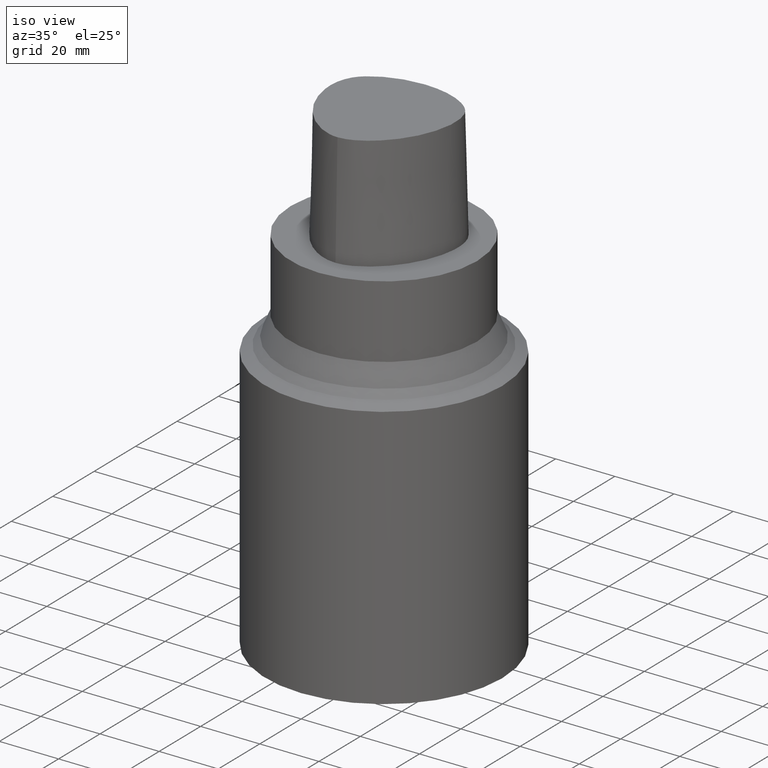
[diagram: clean part render]
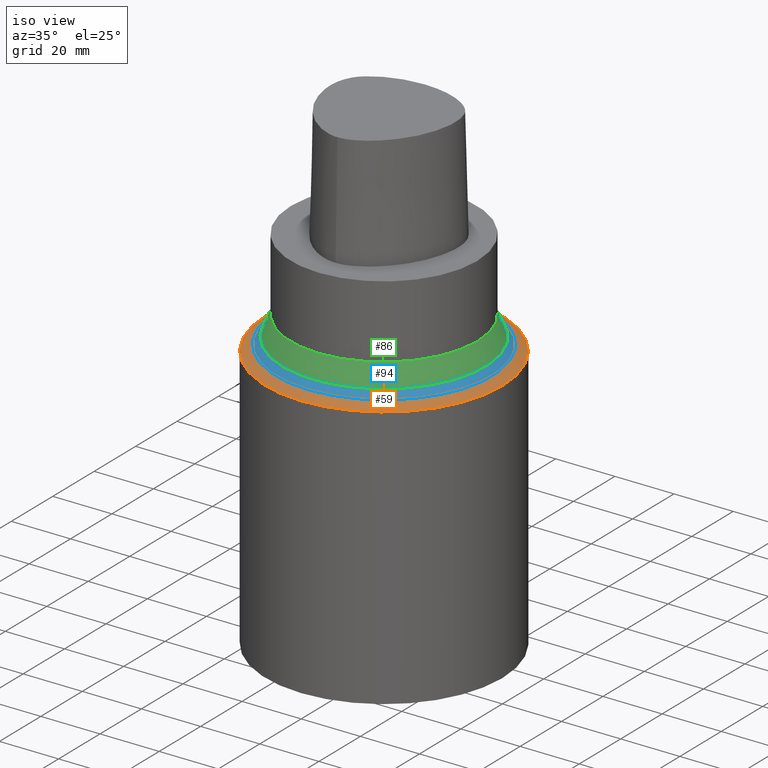
[diagram: same view with three faces highlighted in distinct colors, each labeled with its STEP entity id]
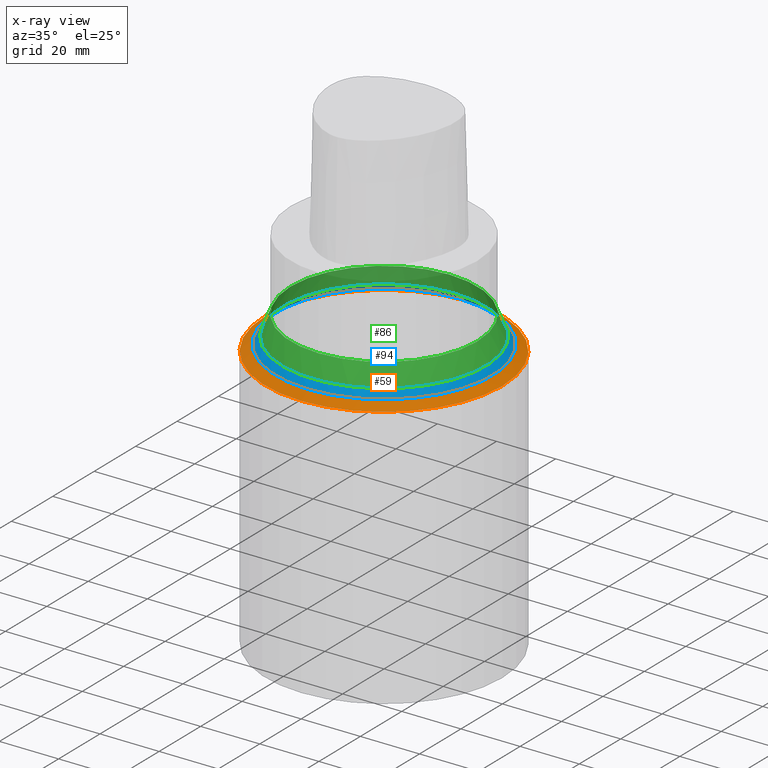
[diagram: x-ray of the same camera — body ghosted, the three highlighted faces saturated]
A machine part, iso view with three faces highlighted in distinct colors.
The next image is the same camera in x-ray (body ghosted, the three faces saturated) — at least one of them is partly hidden behind the body in this view.
Their STEP definitions:

[orange] entity #59 — the highlighted conical surface has half-angle 60 deg.
#59=ADVANCED_FACE('Unnamed[1]',(#147,#148),#149,.T.);
#74=EDGE_CURVE('Unnamed[1]',#170,#170,#171,.T.);
#108=EDGE_CURVE('Unnamed[1]',#219,#219,#220,.T.);
#147=FACE_BOUND('',#327,.T.);
#148=FACE_BOUND('',#328,.T.);
#149=CONICAL_SURFACE('',#329,38.2327008494253,1.04719755119658);
#170=VERTEX_POINT('',#389);
#171=CIRCLE('',#390,36.4654016988506);
#219=VERTEX_POINT('',#484);
#220=CIRCLE('',#485,40.0);
#327=EDGE_LOOP('',(#586));
#328=EDGE_LOOP('',(#587));
#329=AXIS2_PLACEMENT_3D('',#588,#589,#590);
#389=CARTESIAN_POINT('',(2.07247284381275E-015,36.4654016988506,-33.8460500653035));
#390=AXIS2_PLACEMENT_3D('',#603,#604,#605);
#484=CARTESIAN_POINT('',(2.19742975838069E-015,40.0,-35.8867513459494));
#485=AXIS2_PLACEMENT_3D('',#654,#655,#656);
#586=ORIENTED_EDGE('',*,*,#108,.F.);
#587=ORIENTED_EDGE('',*,*,#74,.T.);
#588=CARTESIAN_POINT('',(2.13495130109672E-015,4.26990260219345E-015,-34.8664007056265));
#589=DIRECTION('',(6.12323399573677E-017,1.22464679914735E-016,-1.0));
#590=DIRECTION('',(-1.23259516440783E-032,1.0,1.22464679914735E-016));
#603=CARTESIAN_POINT('',(2.07247284381275E-015,4.1449456876255E-015,-33.8460500653035));
#604=DIRECTION('',(6.12323399573677E-017,1.22464679914735E-016,-1.0));
#605=DIRECTION('',(-1.23259516440783E-032,1.0,1.22464679914735E-016));
#654=CARTESIAN_POINT('',(2.19742975838069E-015,4.39485951676139E-015,-35.8867513459494));
#655=DIRECTION('',(6.12323399573677E-017,1.22464679914735E-016,-1.0));
#656=DIRECTION('',(-1.23259516440783E-032,1.0,1.22464679914735E-016));

[blue] entity #94 — the highlighted conical surface has half-angle 41.303 deg.
#74=EDGE_CURVE('Unnamed[1]',#170,#170,#171,.T.);
#94=ADVANCED_FACE('Unnamed[1]',(#197,#198),#199,.T.);
#99=EDGE_CURVE('Unnamed[1]',#206,#206,#207,.T.);
#170=VERTEX_POINT('',#389);
#171=CIRCLE('',#390,36.4654016988506);
#197=FACE_BOUND('',#456,.T.);
#198=FACE_BOUND('',#457,.T.);
#199=CONICAL_SURFACE('',#458,35.4074818503013,0.720875980582513);
#206=VERTEX_POINT('',#467);
#207=CIRCLE('',#468,34.349562001752);
#389=CARTESIAN_POINT('',(2.07247284381275E-015,36.4654016988506,-33.8460500653035));
#390=AXIS2_PLACEMENT_3D('',#603,#604,#605);
#456=EDGE_LOOP('',(#628));
#457=EDGE_LOOP('',(#629));
#458=AXIS2_PLACEMENT_3D('',#630,#631,#632);
#467=CARTESIAN_POINT('',(1.9250166340247E-015,34.349562001752,-31.4379074091399));
#468=AXIS2_PLACEMENT_3D('',#639,#640,#641);
#603=CARTESIAN_POINT('',(2.07247284381275E-015,4.1449456876255E-015,-33.8460500653035));
#604=DIRECTION('',(6.12323399573677E-017,1.22464679914735E-016,-1.0));
#605=DIRECTION('',(-1.23259516440783E-032,1.0,1.22464679914735E-016));
#628=ORIENTED_EDGE('',*,*,#74,.F.);
#629=ORIENTED_EDGE('',*,*,#99,.T.);
#630=CARTESIAN_POINT('',(1.99874473891873E-015,3.99748947783745E-015,-32.6419787372217));
#631=DIRECTION('',(6.12323399573677E-017,1.22464679914735E-016,-1.0));
#632=DIRECTION('',(-1.23259516440783E-032,1.0,1.22464679914735E-016));
#639=CARTESIAN_POINT('',(1.9250166340247E-015,3.8500332680494E-015,-31.4379074091399));
#640=DIRECTION('',(6.12323399573677E-017,1.22464679914735E-016,-1.0));
#641=DIRECTION('',(-1.23259516440783E-032,1.0,1.22464679914735E-016));

[green] entity #86 — the highlighted conical surface has half-angle 22.606 deg.
#72=EDGE_CURVE('Unnamed[1]',#167,#167,#168,.T.);
#86=ADVANCED_FACE('Unnamed[1]',(#185,#186),#187,.T.);
#99=EDGE_CURVE('Unnamed[1]',#206,#206,#207,.T.);
#167=VERTEX_POINT('',#385);
#168=CIRCLE('',#386,31.5);
#185=FACE_BOUND('',#425,.T.);
#186=FACE_BOUND('',#426,.T.);
#187=CONICAL_SURFACE('',#427,32.924781000876,0.394554409968465);
#206=VERTEX_POINT('',#467);
#207=CIRCLE('',#468,34.349562001752);
#385=CARTESIAN_POINT('',(1.50597243309276E-015,31.5,-24.5943962641518));
#386=AXIS2_PLACEMENT_3D('',#600,#601,#602);
#425=EDGE_LOOP('',(#614));
#426=EDGE_LOOP('',(#615));
#427=AXIS2_PLACEMENT_3D('',#616,#617,#618);
#467=CARTESIAN_POINT('',(1.9250166340247E-015,34.349562001752,-31.4379074091399));
#468=AXIS2_PLACEMENT_3D('',#639,#640,#641);
#600=CARTESIAN_POINT('',(1.50597243309276E-015,3.01194486618551E-015,-24.5943962641518));
#601=DIRECTION('',(6.12323399573677E-017,1.22464679914735E-016,-1.0));
#602=DIRECTION('',(-1.23259516440783E-032,1.0,1.22464679914735E-016));
#614=ORIENTED_EDGE('',*,*,#99,.F.);
#615=ORIENTED_EDGE('',*,*,#72,.T.);
#616=CARTESIAN_POINT('',(1.71549453355873E-015,3.43098906711746E-015,-28.0161518366458));
#617=DIRECTION('',(6.12323399573677E-017,1.22464679914735E-016,-1.0));
#618=DIRECTION('',(-1.23259516440783E-032,1.0,1.22464679914735E-016));
#639=CARTESIAN_POINT('',(1.9250166340247E-015,3.8500332680494E-015,-31.4379074091399));
#640=DIRECTION('',(6.12323399573677E-017,1.22464679914735E-016,-1.0));
#641=DIRECTION('',(-1.23259516440783E-032,1.0,1.22464679914735E-016));